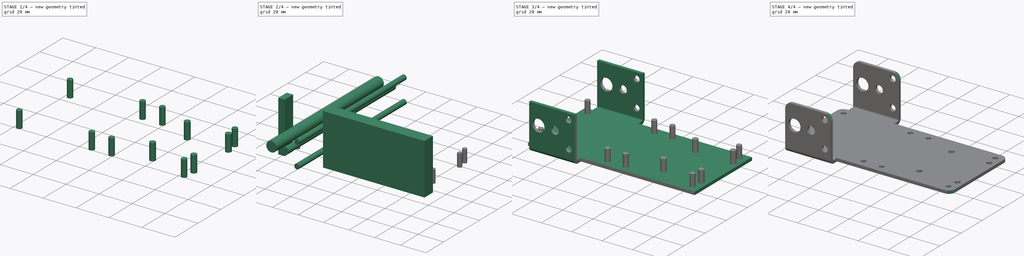
[diagram: build sequence overview — one tinted view per stage of 4, left to right]
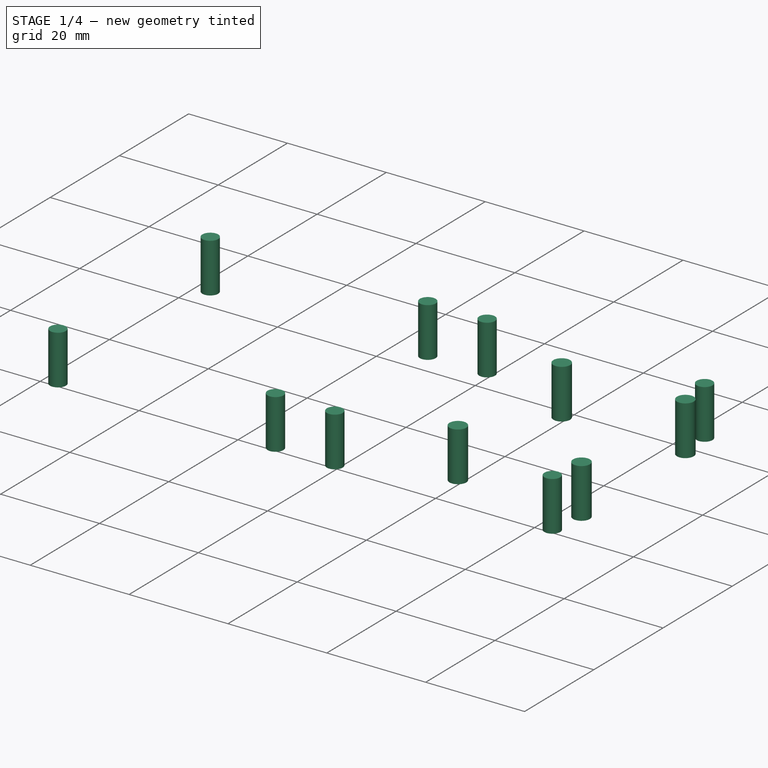
[diagram: stage 1 of 4 — iso view after this stage's code; geometry added in this stage tinted green]
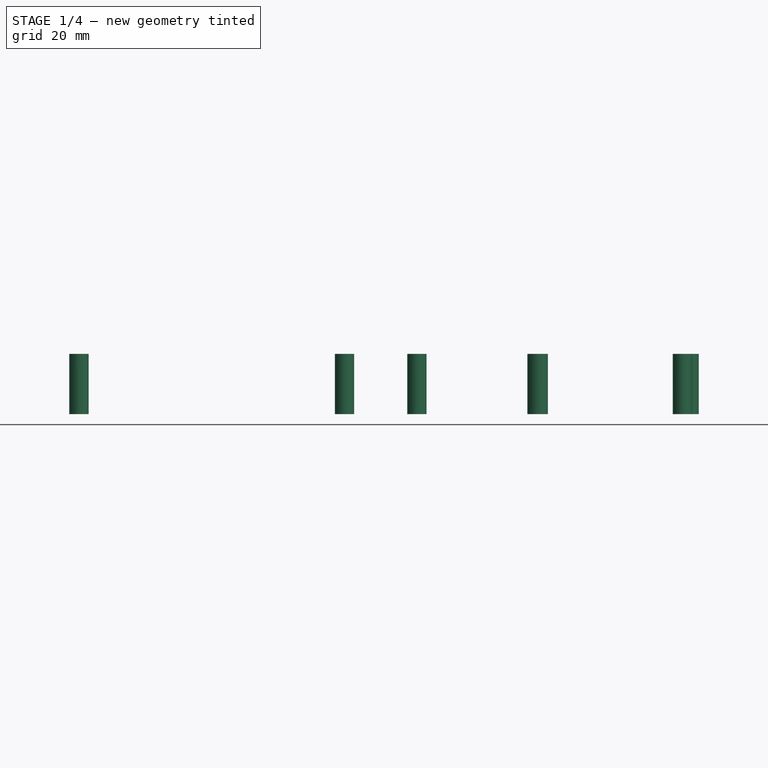
[diagram: stage 1 of 4 — front view after this stage's code; geometry added in this stage tinted green]
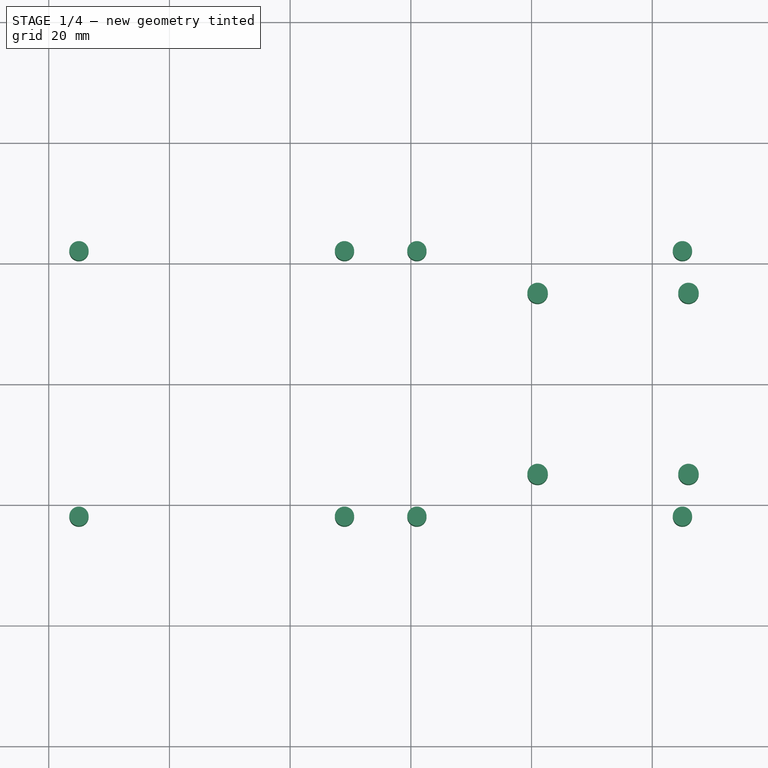
[diagram: stage 1 of 4 — top view after this stage's code; geometry added in this stage tinted green]
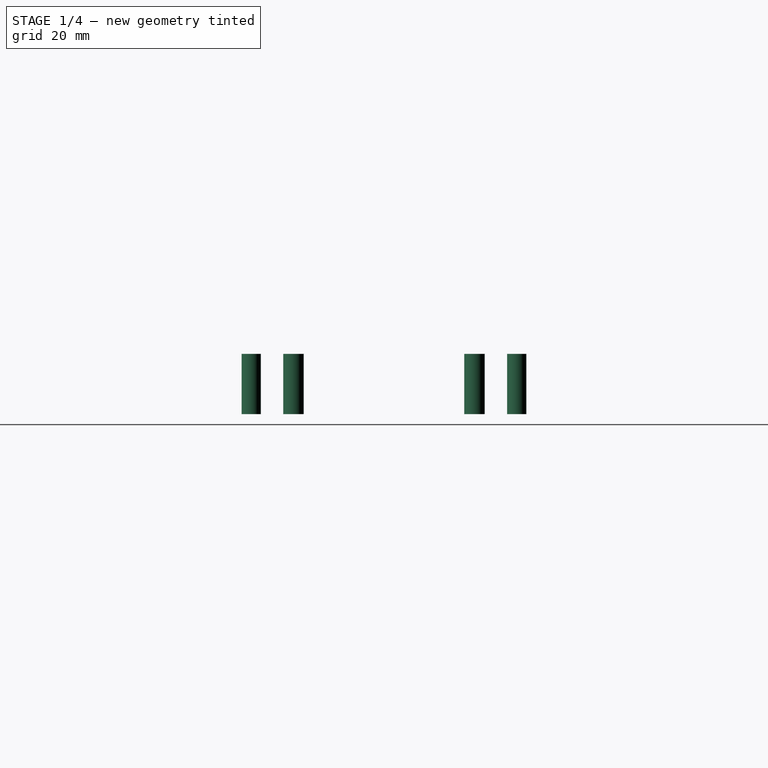
[diagram: stage 1 of 4 — right view after this stage's code; geometry added in this stage tinted green]
FCSTD DOCUMENT  (FreeCAD 0.18.4R)
Label: motors_base
License: All rights reserved
LicenseURL: http://en.wikipedia.org/wiki/All_rights_reserved
objects: Sketcher::SketchObject×4, Part::Extrusion×4, Part::Cut×3, Part::Mirroring×2, Part::Fillet×2, Part::Fuse×1, Part::MultiFuse×1
note: 17 computed .brp shape members not serialized (recipe doc carries the construction recipe); baked Part::Feature solids carry a one-line shape summary decoded from their .brp

FEATURE [Sketcher::SketchObject] Sketch003
  sketch-geometry (25):
    g0: LineSegment [constr] StartX=0 StartY=27 StartZ=0 EndX=110 EndY=27 EndZ=0
    g1: LineSegment [constr] StartX=110 StartY=-27 StartZ=0 EndX=0 EndY=-27 EndZ=0
    g2: LineSegment [constr] StartX=0 StartY=-27 StartZ=0 EndX=0 EndY=27 EndZ=0
    g3: LineSegment [constr] StartX=110 StartY=27 StartZ=0 EndX=110 EndY=0 EndZ=0
    g4: LineSegment [constr] StartX=110 StartY=0 StartZ=0 EndX=110 EndY=-27 EndZ=0
    g5: Circle CenterX=5 CenterY=22 CenterZ=0 NormalX=0 NormalY=0 NormalZ=1 AngleXU=0 Radius=1.6
    g6: Circle CenterX=49 CenterY=22 CenterZ=0 NormalX=0 NormalY=0 NormalZ=1 AngleXU=0 Radius=1.6
    g7: Circle CenterX=61 CenterY=22 CenterZ=0 NormalX=0 NormalY=0 NormalZ=1 AngleXU=0 Radius=1.6
    g8: Circle CenterX=105 CenterY=22 CenterZ=0 NormalX=0 NormalY=0 NormalZ=1 AngleXU=0 Radius=1.6
    g9: LineSegment [constr] StartX=0 StartY=22 StartZ=0 EndX=2 EndY=22 EndZ=0
    g10: LineSegment [constr] StartX=2 StartY=22 StartZ=0 EndX=5 EndY=22 EndZ=0
    g11: LineSegment [constr] StartX=5 StartY=22 StartZ=0 EndX=49 EndY=22 EndZ=0
    g12: LineSegment [constr] StartX=49 StartY=22 StartZ=0 EndX=52 EndY=22 EndZ=0
    g13: LineSegment [constr] StartX=52 StartY=22 StartZ=0 EndX=58 EndY=22 EndZ=0
    g14: LineSegment [constr] StartX=58 StartY=22 StartZ=0 EndX=61 EndY=22 EndZ=0
    g15: LineSegment [constr] StartX=61 StartY=22 StartZ=0 EndX=105 EndY=22 EndZ=0
    g16: LineSegment [constr] StartX=105 StartY=22 StartZ=0 EndX=108 EndY=22 EndZ=0
    g17: LineSegment [constr] StartX=108 StartY=22 StartZ=0 EndX=110 EndY=22 EndZ=0
    g18: LineSegment [constr] StartX=5 StartY=22 StartZ=0 EndX=5 EndY=25 EndZ=0
    g19: LineSegment [constr] StartX=5 StartY=25 StartZ=0 EndX=5 EndY=27 EndZ=0
    g20: Circle CenterX=81 CenterY=15 CenterZ=0 NormalX=0 NormalY=0 NormalZ=1 AngleXU=0 Radius=1.7
    g21: Circle CenterX=106 CenterY=15 CenterZ=0 NormalX=0 NormalY=0 NormalZ=1 AngleXU=0 Radius=1.7
    g22: LineSegment [constr] StartX=81 StartY=15 StartZ=0 EndX=106 EndY=15 EndZ=0
    g23: LineSegment [constr] StartX=106 StartY=15 StartZ=0 EndX=106 EndY=0 EndZ=0
    g24: LineSegment [constr] StartX=106 StartY=0 StartZ=0 EndX=110 EndY=0 EndZ=0
  constraints (70):
    c: Coincident(g1,g2)
    c: Coincident(g2,g0)
    c: Horizontal(g0)
    c: Horizontal(g1)
    c: Vertical(g2)
    c: PointOnObject(g0,g-2)
    c: DistanceX(g0,g0) = 110
    c: Coincident(g0,g3)
    c: PointOnObject(g3,g-1)
    c: Coincident(g3,g4)
    c: Coincident(g4,g1)
    c: Vertical(g4)
    c: Vertical(g3)
    c: Equal(g3,g4)
    c: PointOnObject(g9,g2)
    c: Horizontal(g9)
    c: Coincident(g9,g10)
    c: Coincident(g10,g11)
    c: Horizontal(g11)
    c: Coincident(g11,g12)
    c: Coincident(g12,g13)
    c: Horizontal(g13)
    c: Coincident(g13,g14)
    c: Coincident(g14,g15)
    c: Horizontal(g15)
    c: Coincident(g15,g16)
    c: Coincident(g16,g17)
    c: PointOnObject(g17,g3)
    c: Horizontal(g10)
    c: Horizontal(g12)
    c: Horizontal(g14)
    c: Horizontal(g16)
    c: Horizontal(g17)
    c: Equal(g10,g12)
    c: Equal(g12,g14)
    c: Equal(g14,g16)
    c: Equal(g11,g15)
    c: DistanceX(g10,g10) = 3
    c: DistanceX(g11,g11) = 44
    c: Coincident(g14,g7)
    c: Coincident(g15,g8)
    c: Coincident(g10,g5)
    c: Coincident(g11,g6)
    c: Equal(g5,g6)
    c: Equal(g6,g7)
    c: Equal(g7,g8)
    c: Radius(g5) = 1.6
    c: DistanceY(g-1,g9) = 22
    c: DistanceY(g-1,g0) = 27
    c: Equal(g9,g17)
    c: Coincident(g18,g5)
    c: Coincident(g18,g19)
    c: PointOnObject(g19,g0)
    c: Vertical(g19)
    c: Vertical(g18)
    c: Equal(g19,g9)
    c: Equal(g10,g18)
    c: Equal(g20,g21)
    c: Horizontal(g22)
    c: Coincident(g22,g23)
    c: Coincident(g23,g24)
    c: Horizontal(g24)
    c: Vertical(g23)
    c: Coincident(g24,g3)
    c: Coincident(g21,g22)
    c: Coincident(g22,g20)
    c: Radius(g20) = 1.7
    c: DistanceX(g22,g22) = 25
    c: DistanceX(g24,g24) = 4
    c: DistanceY(g23,g23) = 15
FEATURE [Part::Extrusion] Extrude003
  Base = -> Sketch003
  Dir = (0,0,1)
  DirMode = 2
  FaceMakerClass = Part::FaceMakerBullseye
  LengthFwd = 10
  LengthRev = 0
  Solid = true
  Symmetric = false
FEATURE [Part::Mirroring] Part__Mirroring001  label="Extrude003 (Mirror #2)"
  Base = (0,0,0)
  Normal = (0,1,0)
  Source = -> Extrude003
FEATURE [Part::MultiFuse] Fusion001
  Shapes = -> [Part__Mirroring001,Extrude003]
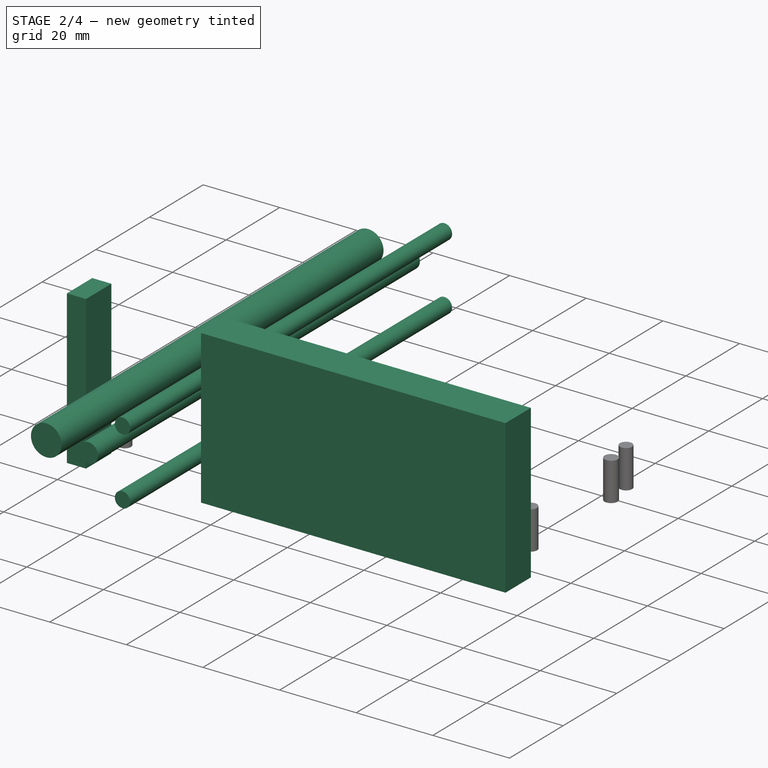
[diagram: stage 2 of 4 — iso view after this stage's code; geometry added in this stage tinted green]
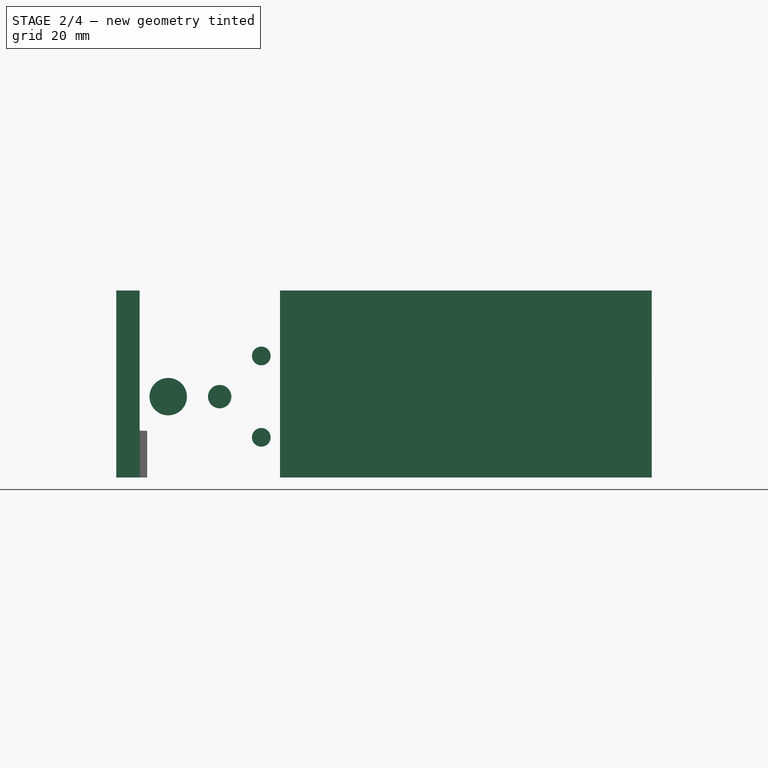
[diagram: stage 2 of 4 — front view after this stage's code; geometry added in this stage tinted green]
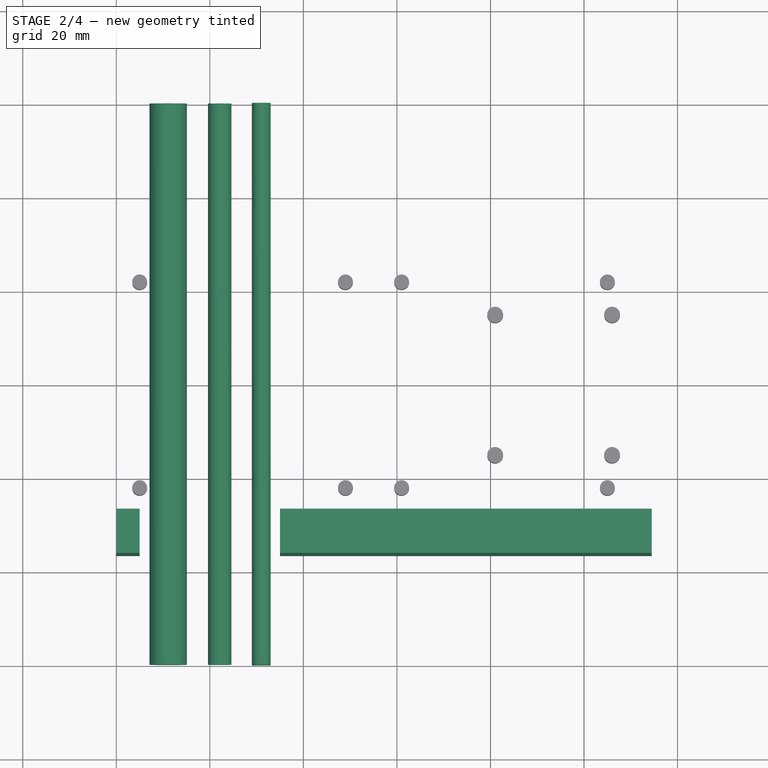
[diagram: stage 2 of 4 — top view after this stage's code; geometry added in this stage tinted green]
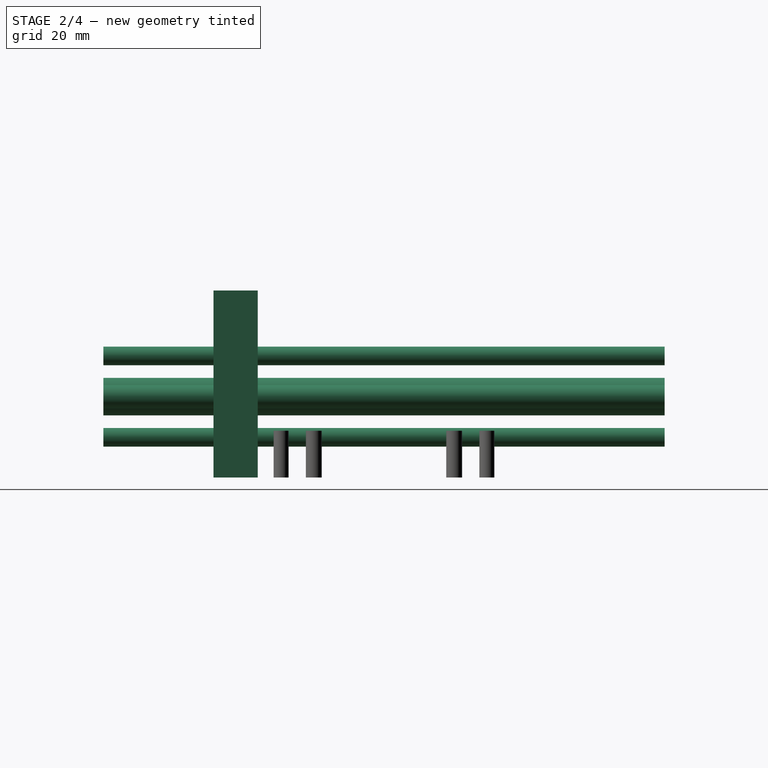
[diagram: stage 2 of 4 — right view after this stage's code; geometry added in this stage tinted green]
FEATURE [Sketcher::SketchObject] Sketch001
  sketch-geometry (10):
    g0: LineSegment StartX=35 StartY=27 StartZ=0 EndX=114.474 EndY=27 EndZ=0
    g1: LineSegment StartX=114.474 StartY=27 StartZ=0 EndX=114.474 EndY=36.4587 EndZ=0
    g2: LineSegment StartX=114.474 StartY=36.4587 StartZ=0 EndX=35 EndY=36.4587 EndZ=0
    g3: LineSegment StartX=35 StartY=36.4587 StartZ=0 EndX=35 EndY=27 EndZ=0
    g4: LineSegment StartX=5 StartY=27 StartZ=0 EndX=0 EndY=27 EndZ=0
    g5: LineSegment StartX=0 StartY=27 StartZ=0 EndX=0 EndY=36.4587 EndZ=0
    g6: LineSegment StartX=0 StartY=36.4587 StartZ=0 EndX=5 EndY=36.4587 EndZ=0
    g7: LineSegment StartX=5 StartY=36.4587 StartZ=0 EndX=5 EndY=27 EndZ=0
    g8: LineSegment [constr] StartX=5 StartY=27 StartZ=0 EndX=35 EndY=27 EndZ=0
    g9: LineSegment [constr] StartX=5 StartY=36.4587 StartZ=0 EndX=35 EndY=36.4587 EndZ=0
  constraints (26):
    c: Coincident(g0,g1)
    c: Coincident(g1,g2)
    c: Coincident(g2,g3)
    c: Coincident(g3,g0)
    c: Horizontal(g0)
    c: Horizontal(g2)
    c: Vertical(g1)
    c: Vertical(g3)
    c: DistanceX(g0) = 35
    c: DistanceY(g0) = 27
    c: Coincident(g4,g5)
    c: Coincident(g5,g6)
    c: Coincident(g6,g7)
    c: Coincident(g7,g4)
    c: Horizontal(g4)
    c: Horizontal(g6)
    c: Vertical(g5)
    c: Vertical(g7)
    c: Coincident(g8,g4)
    c: Coincident(g8,g0)
    c: Coincident(g9,g6)
    c: Coincident(g9,g2)
    c: Horizontal(g9)
    c: Horizontal(g8)
    c: PointOnObject(g4,g-2)
    c: DistanceX(g4,g4) = 5
FEATURE [Part::Extrusion] Extrude001
  Base = -> Sketch001
  Dir = (0,0,1)
  DirMode = 2
  FaceMakerClass = Part::FaceMakerBullseye
  LengthFwd = 40
  LengthRev = 0
  Solid = true
  Symmetric = false
FEATURE [Part::Mirroring] Part__Mirroring  label="Extrude001 (Mirror #1)"
  Base = (0,0,0)
  Normal = (0,1,0)
  Source = -> Extrude001
FEATURE [Sketcher::SketchObject] Sketch002
  Placement = pos=(0,0,0) rot=(1,0,0;1.5708rad)
  sketch-geometry (14):
    g0: LineSegment [constr] StartX=0 StartY=30 StartZ=0 EndX=35 EndY=30 EndZ=0
    g1: LineSegment [constr] StartX=35 StartY=30 StartZ=0 EndX=35 EndY=0 EndZ=0
    g2: LineSegment [constr] StartX=35 StartY=0 StartZ=0 EndX=0 EndY=0 EndZ=0
    g3: LineSegment [constr] StartX=0 StartY=0 StartZ=0 EndX=0 EndY=30 EndZ=0
    g4: Circle CenterX=11.1 CenterY=17.3 CenterZ=0 NormalX=0 NormalY=0 NormalZ=1 AngleXU=0 Radius=4
    g5: Circle CenterX=22.1 CenterY=17.3 CenterZ=0 NormalX=0 NormalY=0 NormalZ=1 AngleXU=0 Radius=2.5
    g6: Circle CenterX=31 CenterY=8.6 CenterZ=0 NormalX=0 NormalY=0 NormalZ=1 AngleXU=0 Radius=2
    g7: Circle CenterX=31 CenterY=26 CenterZ=0 NormalX=0 NormalY=0 NormalZ=1 AngleXU=0 Radius=2
    g8: LineSegment [constr] StartX=31 StartY=26 StartZ=0 EndX=31 EndY=17.3 EndZ=0
    g9: LineSegment [constr] StartX=31 StartY=17.3 StartZ=0 EndX=31 EndY=8.6 EndZ=0
    g10: LineSegment [constr] StartX=35 StartY=17.3 StartZ=0 EndX=31 EndY=17.3 EndZ=0
    g11: LineSegment [constr] StartX=31 StartY=17.3 StartZ=0 EndX=22.1 EndY=17.3 EndZ=0
    g12: LineSegment [constr] StartX=22.1 StartY=17.3 StartZ=0 EndX=11.1 EndY=17.3 EndZ=0
    g13: LineSegment [constr] StartX=11.1 StartY=17.3 StartZ=0 EndX=0 EndY=17.3 EndZ=0
  constraints (39):
    c: Coincident(g0,g1)
    c: Coincident(g1,g2)
    c: Coincident(g2,g3)
    c: Coincident(g3,g0)
    c: Horizontal(g0)
    c: Horizontal(g2)
    c: Vertical(g1)
    c: Vertical(g3)
    c: PointOnObject(g1,g-1)
    c: PointOnObject(g0,g-2)
    c: Distance(g1) = 30
    c: Distance(g0) = 35
    c: Coincident(g8,g7)
    c: Coincident(g8,g9)
    c: Coincident(g9,g6)
    c: Vertical(g9)
    c: Vertical(g8)
    c: Equal(g8,g9)
    c: PointOnObject(g10,g1)
    c: Coincident(g10,g8)
    c: Coincident(g10,g11)
    c: Coincident(g11,g5)
    c: Horizontal(g11)
    c: Coincident(g11,g12)
    c: Coincident(g12,g4)
    c: Horizontal(g12)
    c: Coincident(g12,g13)
    c: PointOnObject(g13,g3)
    c: Horizontal(g13)
    c: Horizontal(g10)
    c: Distance(g6,g7) = 17.4
    c: Distance(g12) = 11
    c: Distance(g11) = 8.9
    c: Equal(g7,g6)
    c: Radius(g7) = 2
    c: Radius(g5) = 2.5
    c: Radius(g4) = 4
    c: DistanceY(g7,g0) = 4
    c: DistanceX(g7,g0) = 4
FEATURE [Part::Extrusion] Extrude002
  Base = -> Sketch002
  Dir = (0,-1,2e-16)
  DirMode = 2
  FaceMakerClass = Part::FaceMakerBullseye
  LengthFwd = 60
  LengthRev = 60
  Solid = true
  Symmetric = false
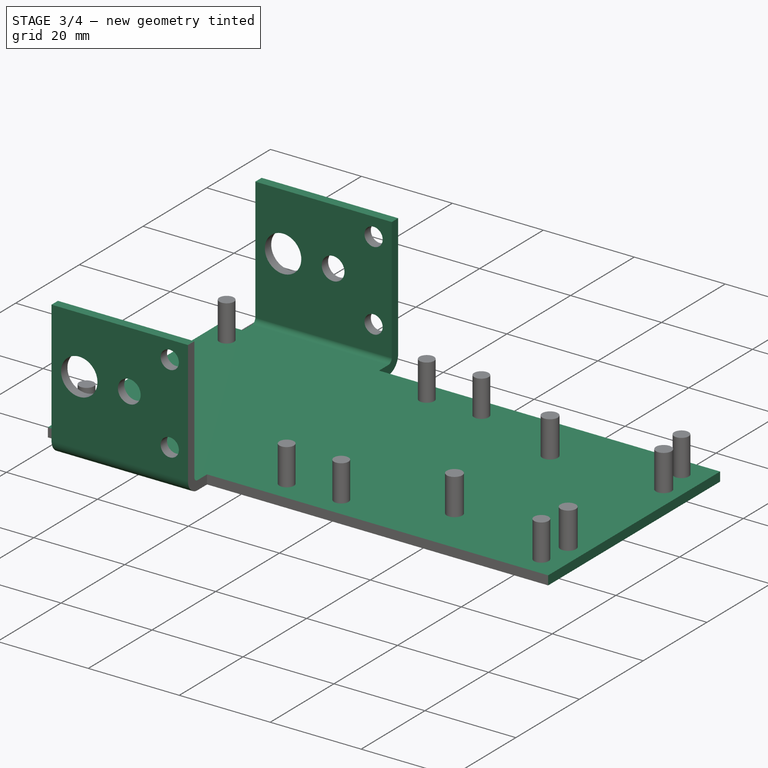
[diagram: stage 3 of 4 — iso view after this stage's code; geometry added in this stage tinted green]
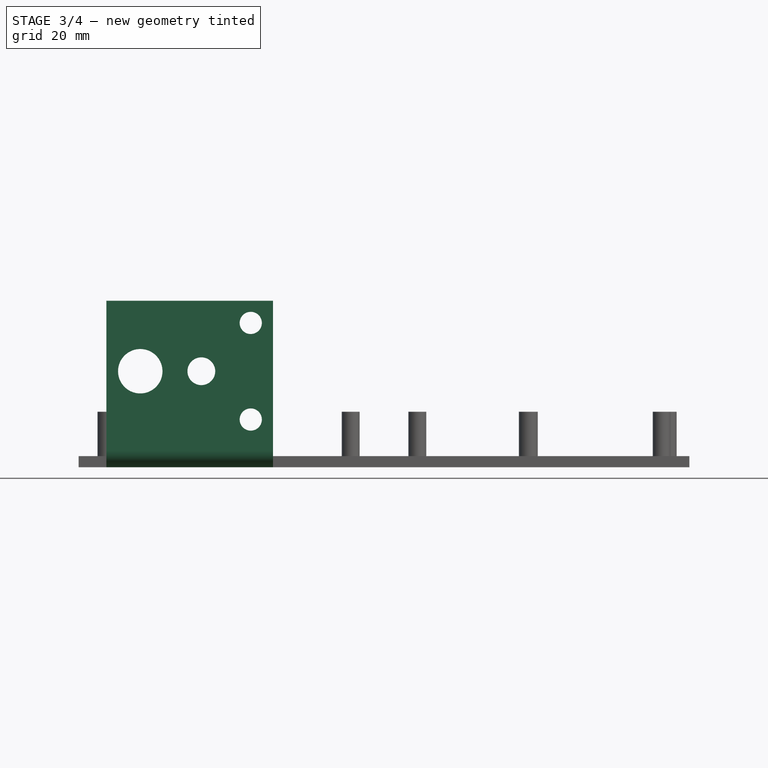
[diagram: stage 3 of 4 — front view after this stage's code; geometry added in this stage tinted green]
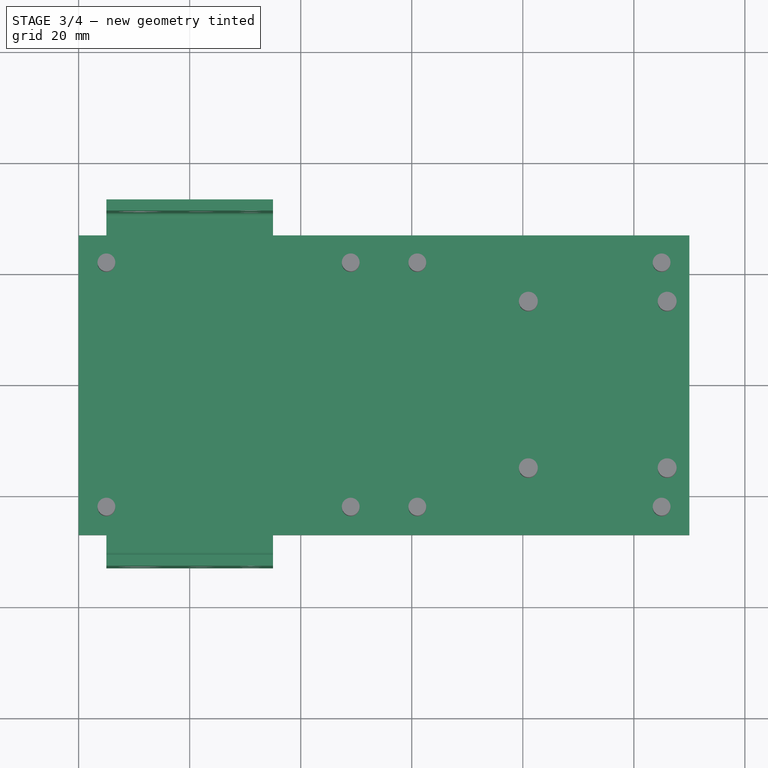
[diagram: stage 3 of 4 — top view after this stage's code; geometry added in this stage tinted green]
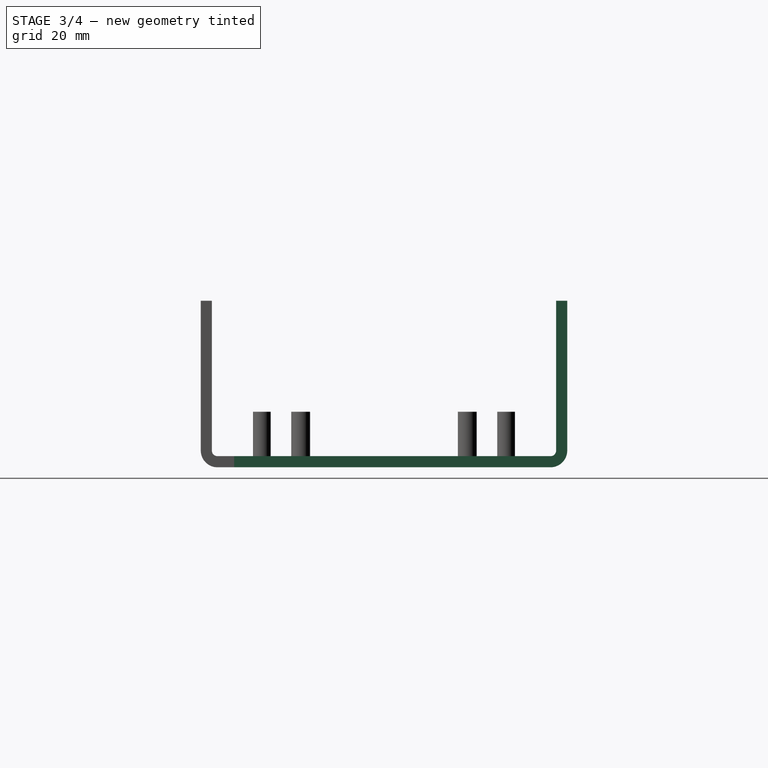
[diagram: stage 3 of 4 — right view after this stage's code; geometry added in this stage tinted green]
FEATURE [Sketcher::SketchObject] Sketch
  Placement = pos=(0,0,0) rot=(0.57735,0.57735,0.57735;2.0944rad)
  sketch-geometry (20):
    g0: LineSegment StartX=-33 StartY=30 StartZ=0 EndX=-33 EndY=3 EndZ=0
    g1: LineSegment StartX=-30 StartY=0 StartZ=0 EndX=30 EndY=0 EndZ=0
    g2: LineSegment StartX=33 StartY=3 StartZ=0 EndX=33 EndY=30 EndZ=0
    g3: LineSegment StartX=33 StartY=30 StartZ=0 EndX=31 EndY=30 EndZ=0
    g4: LineSegment StartX=31 StartY=30 StartZ=0 EndX=31 EndY=3 EndZ=0
    g5: LineSegment StartX=30 StartY=2 StartZ=0 EndX=-30 EndY=2 EndZ=0
    g6: LineSegment StartX=-31 StartY=3 StartZ=0 EndX=-31 EndY=30 EndZ=0
    g7: LineSegment StartX=-31 StartY=30 StartZ=0 EndX=-33 EndY=30 EndZ=0
    g8: ArcOfCircle CenterX=-30 CenterY=3 CenterZ=0 NormalX=0 NormalY=0 NormalZ=1 AngleXU=0 Radius=1 StartAngle=3.14159 EndAngle=4.71239
    g9: ArcOfCircle CenterX=-30 CenterY=3 CenterZ=0 NormalX=0 NormalY=0 NormalZ=1 AngleXU=0 Radius=3 StartAngle=3.14159 EndAngle=4.71239
    g10: ArcOfCircle CenterX=30 CenterY=3 CenterZ=0 NormalX=0 NormalY=0 NormalZ=1 AngleXU=0 Radius=1 StartAngle=4.71239 EndAngle=6.28319
    g11: ArcOfCircle CenterX=30 CenterY=3 CenterZ=0 NormalX=0 NormalY=0 NormalZ=1 AngleXU=0 Radius=3 StartAngle=4.71239 EndAngle=6.28319
    g12: LineSegment [constr] StartX=-33 StartY=30 StartZ=0 EndX=-33 EndY=40.9692 EndZ=0
    g13: LineSegment [constr] StartX=-33 StartY=40.9692 StartZ=0 EndX=33 EndY=40.9692 EndZ=0
    g14: LineSegment [constr] StartX=33 StartY=40.9692 StartZ=0 EndX=33 EndY=30 EndZ=0
    g15: LineSegment [constr] StartX=33 StartY=30 StartZ=0 EndX=49.526 EndY=30 EndZ=0
    g16: LineSegment [constr] StartX=49.526 StartY=30 StartZ=0 EndX=49.526 EndY=0 EndZ=0
    g17: LineSegment [constr] StartX=49.526 StartY=0 StartZ=0 EndX=30 EndY=0 EndZ=0
    g18: LineSegment [constr] StartX=-31 StartY=30 StartZ=0 EndX=0 EndY=30 EndZ=0
    g19: LineSegment [constr] StartX=0 StartY=30 StartZ=0 EndX=31 EndY=30 EndZ=0
  constraints (49):
    c: Vertical(g0)
    c: Horizontal(g1)
    c: Vertical(g2)
    c: Coincident(g2,g3)
    c: Coincident(g3,g4)
    c: Vertical(g4)
    c: Horizontal(g5)
    c: Vertical(g6)
    c: Coincident(g6,g7)
    c: Coincident(g7,g0)
    c: Horizontal(g7)
    c: Horizontal(g3)
    c: Tangent(g5,g8) = 1.5708
    c: Tangent(g6,g8) = 1.5708
    c: Tangent(g0,g9) = -1.5708
    c: Tangent(g1,g9) = -1.5708
    c: Tangent(g4,g10) = 1.5708
    c: Tangent(g5,g10) = 1.5708
    c: Tangent(g1,g11) = -1.5708
    c: Tangent(g2,g11) = -1.5708
    c: Equal(g9,g11)
    c: Distance(g7) = 2
    c: Coincident(g9,g8)
    c: Coincident(g10,g11)
    c: Radius(g9) = 3
    c: Coincident(g0,g12)
    c: Coincident(g12,g13)
    c: Horizontal(g13)
    c: Coincident(g13,g14)
    c: Coincident(g14,g2)
    c: Vertical(g12)
    c: Vertical(g14)
    c: Coincident(g2,g15)
    c: Coincident(g15,g16)
    c: Vertical(g16)
    c: Coincident(g16,g17)
    c: Horizontal(g15)
    c: Coincident(g17,g1)
    c: Horizontal(g17)
    c: Distance(g16) = 30
    c: Distance(g13) = 66
    c: PointOnObject(g1,g-1)
    c: Coincident(g6,g18)
    c: PointOnObject(g18,g-2)
    c: Horizontal(g18)
    c: Coincident(g18,g19)
    c: Coincident(g19,g3)
    c: Horizontal(g19)
    c: Equal(g19,g18)
FEATURE [Part::Extrusion] Extrude
  Base = -> Sketch
  Dir = (1,0,0)
  DirMode = 2
  FaceMakerClass = Part::FaceMakerBullseye
  LengthFwd = 110
  LengthRev = 0
  Solid = true
  Symmetric = false
FEATURE [Part::Fuse] Fusion
  Base = -> Extrude001
  Tool = -> Part__Mirroring
FEATURE [Part::Cut] Cut
  Base = -> Extrude
  Tool = -> Fusion
FEATURE [Part::Cut] Cut001
  Base = -> Cut
  Tool = -> Extrude002
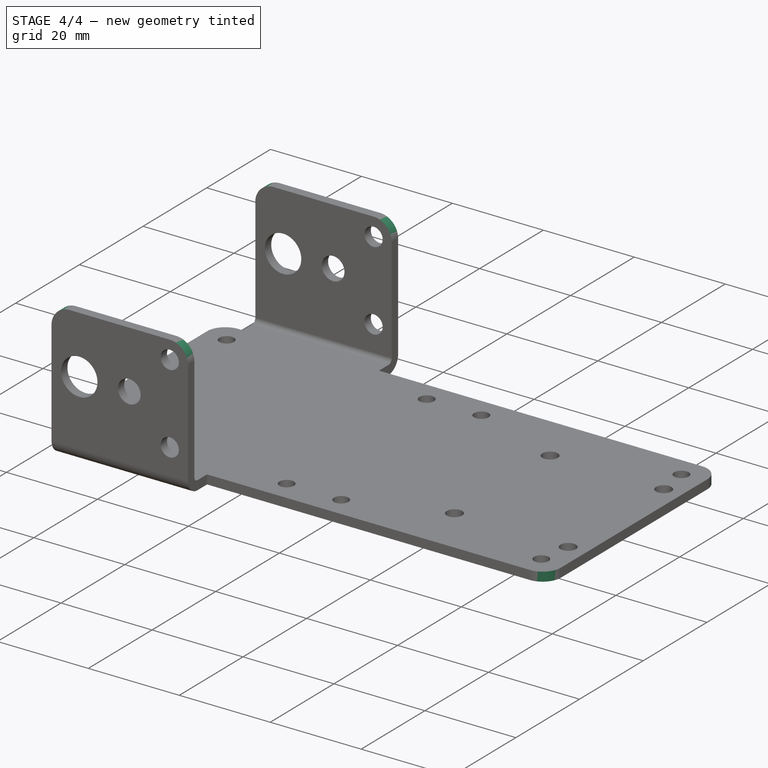
[diagram: stage 4 of 4 — iso view after this stage's code; geometry added in this stage tinted green]
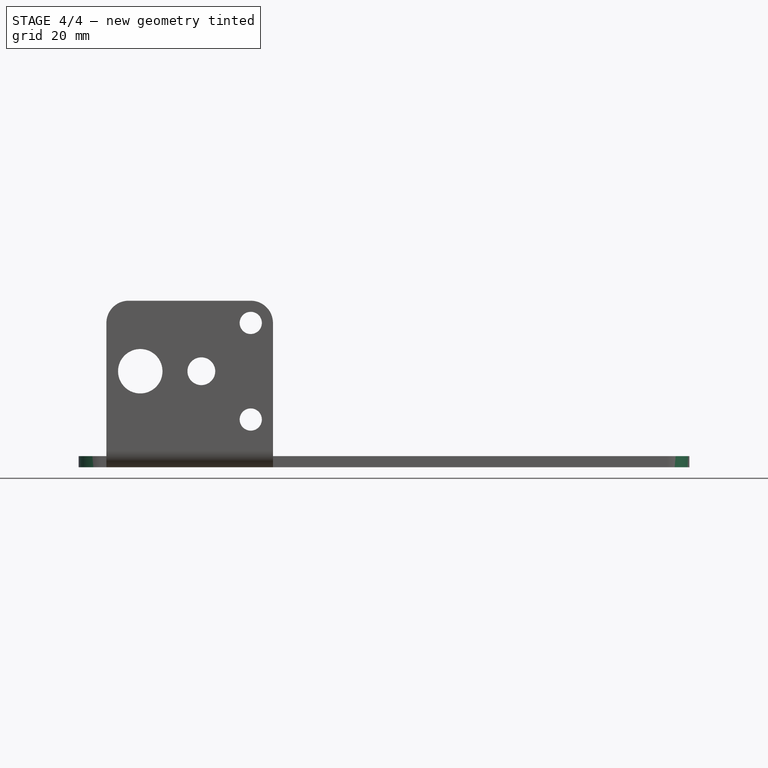
[diagram: stage 4 of 4 — front view after this stage's code; geometry added in this stage tinted green]
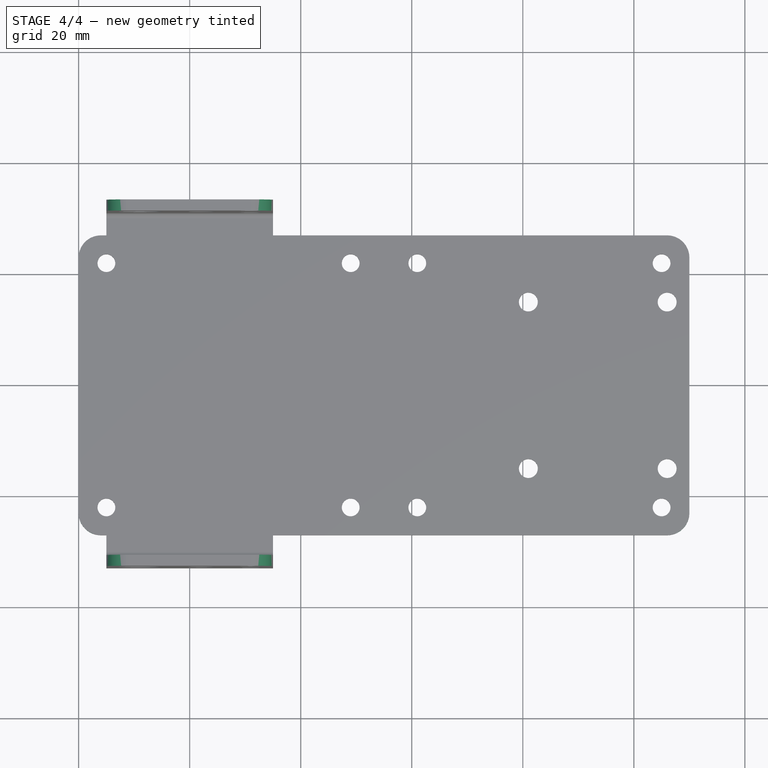
[diagram: stage 4 of 4 — top view after this stage's code; geometry added in this stage tinted green]
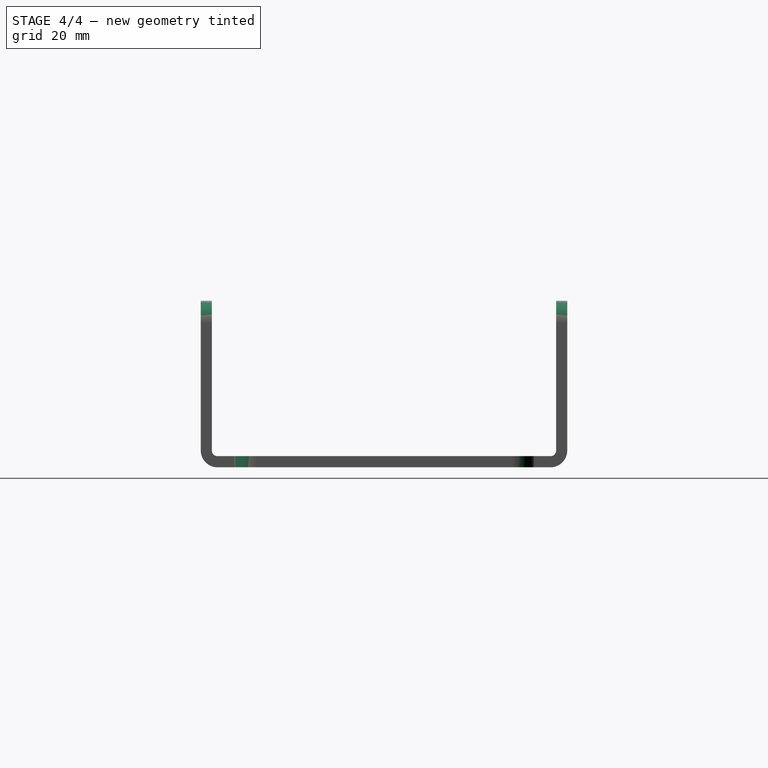
[diagram: stage 4 of 4 — right view after this stage's code; geometry added in this stage tinted green]
FEATURE [Part::Cut] Cut002
  Base = -> Cut001
  Tool = -> Fusion001
FEATURE [Part::Fillet] Fillet
  Base = -> Cut002
  Edges = 4 edges r=4: [Edge55,Edge78,Edge79,Edge81]
FEATURE [Part::Fillet] Fillet001
  Base = -> Fillet
  Edges = 4 edges r=4: [Edge37,Edge50,Edge59,Edge72]
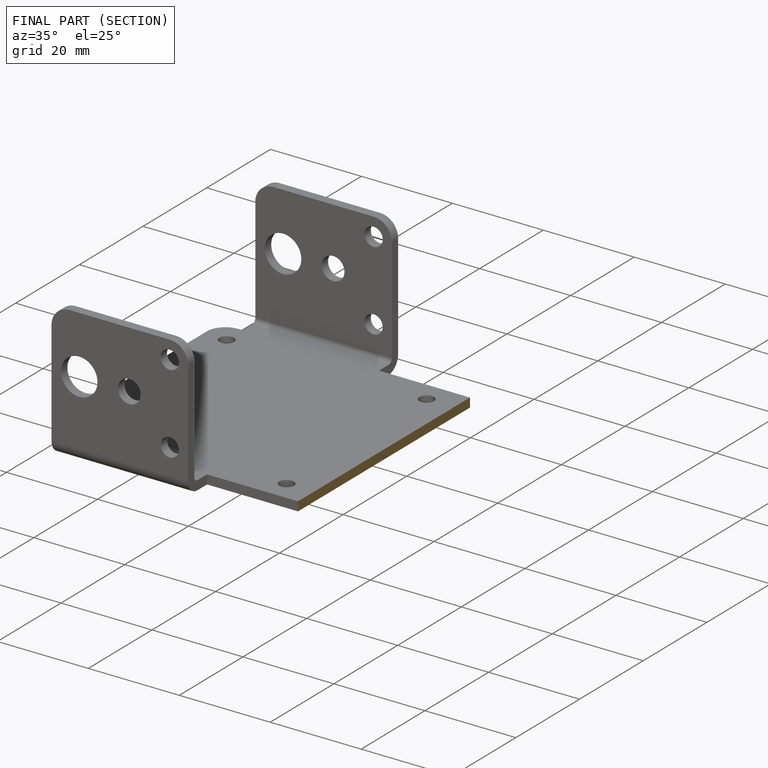
[diagram: finished part — half-section view (interior)]
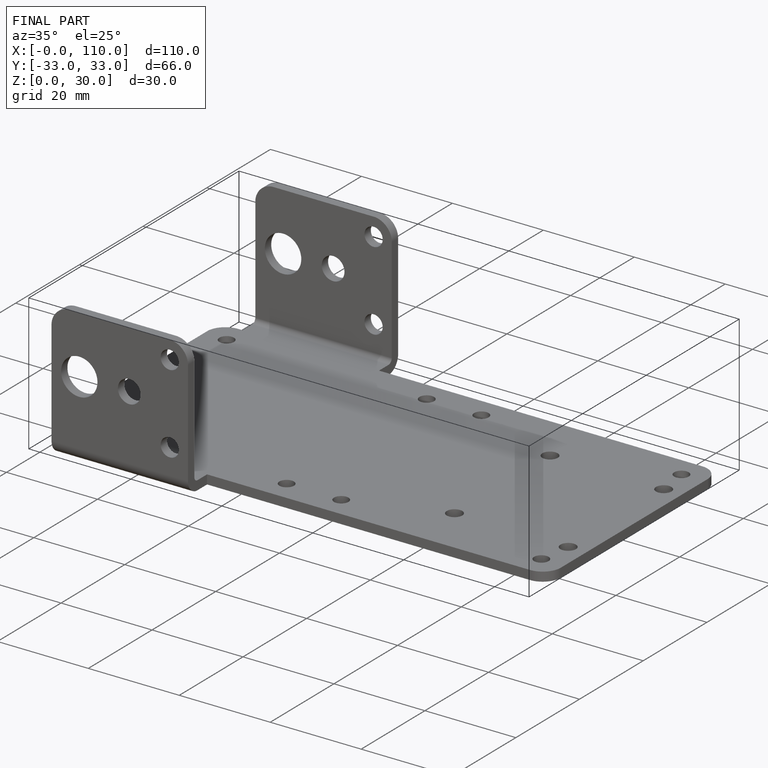
[diagram: finished part — iso view with bounding-box wireframe]
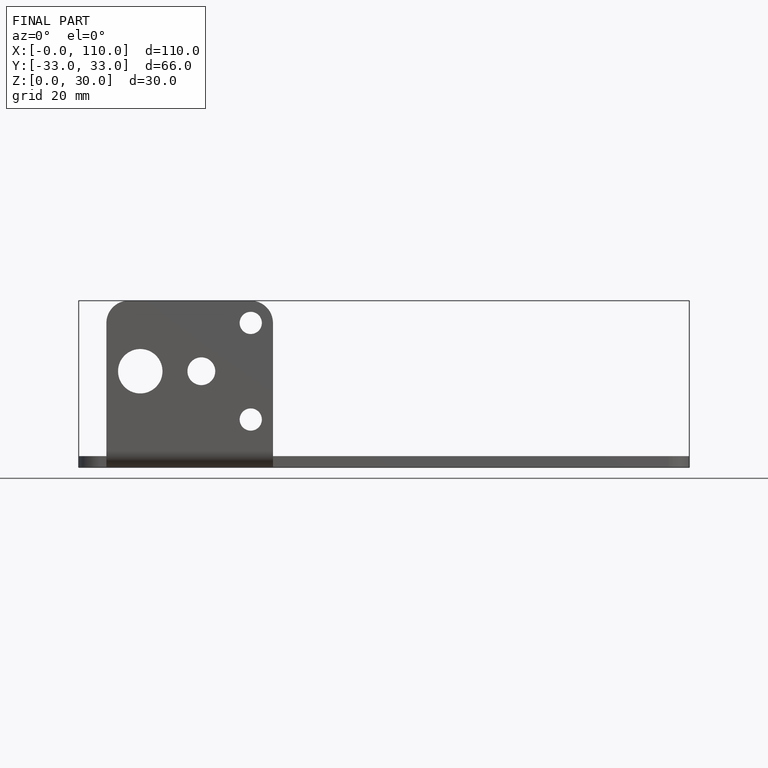
[diagram: finished part — front view with bounding-box wireframe]
